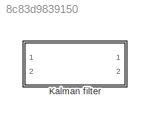
MODEL slx_8c83d9839150
KIND model
CONFIG AbsTol = auto
CONFIG EnableMultiTasking = off
CONFIG FixedStep = auto
CONFIG MaxStep = auto
CONFIG MinStep = auto
CONFIG RelTol = 1e-3
CONFIG SampleTimeConstraint = Unconstrained
CONFIG Solver = VariableStepAuto
CONFIG SolverName = VariableStepAuto
CONFIG StartTime = 0.0
CONFIG StopTime = 10.0
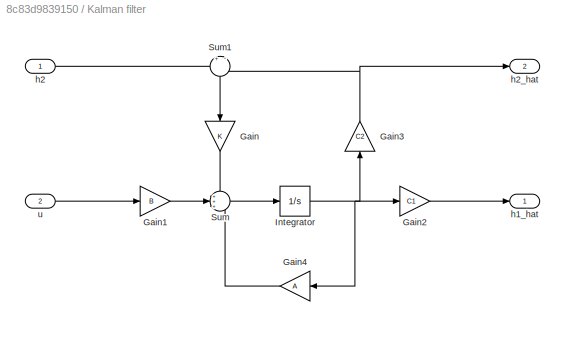
BLOCK [SubSystem] Kalman filter
  Ports = [2, 2]
  RequestExecContextInheritance = off
BLOCK [Gain] Kalman filter/Gain
  Gain = K
  OutDataTypeStr = Inherit: Inherit via internal rule
  ParamDataTypeStr = Inherit: Inherit via internal rule
  SaturateOnIntegerOverflow = off
BLOCK [Gain] Kalman filter/Gain1
  Gain = B
  OutDataTypeStr = Inherit: Inherit via internal rule
  ParamDataTypeStr = Inherit: Inherit via internal rule
  SaturateOnIntegerOverflow = off
BLOCK [Gain] Kalman filter/Gain2
  Gain = C1
  OutDataTypeStr = Inherit: Inherit via internal rule
  ParamDataTypeStr = Inherit: Inherit via internal rule
  SaturateOnIntegerOverflow = off
BLOCK [Gain] Kalman filter/Gain3
  Gain = C2
  OutDataTypeStr = Inherit: Inherit via internal rule
  ParamDataTypeStr = Inherit: Inherit via internal rule
  SaturateOnIntegerOverflow = off
BLOCK [Gain] Kalman filter/Gain4
  Gain = A
  OutDataTypeStr = Inherit: Inherit via internal rule
  ParamDataTypeStr = Inherit: Inherit via internal rule
  SaturateOnIntegerOverflow = off
BLOCK [Integrator] Kalman filter/Integrator
  Ports = [1, 1]
BLOCK [Sum] Kalman filter/Sum
  IconShape = round
  InputSameDT = off
  Inputs = +++
  OutDataTypeStr = Inherit: Inherit via internal rule
  Ports = [3, 1]
  SaturateOnIntegerOverflow = off
BLOCK [Sum] Kalman filter/Sum1
  IconShape = round
  InputSameDT = off
  Inputs = +|-
  OutDataTypeStr = Inherit: Inherit via internal rule
  Ports = [2, 1]
  SaturateOnIntegerOverflow = off
BLOCK [Outport] Kalman filter/h1_hat
  IconDisplay = Port number
BLOCK [Inport] Kalman filter/h2
  IconDisplay = Port number
BLOCK [Outport] Kalman filter/h2_hat
  IconDisplay = Port number
  Port = 2
BLOCK [Inport] Kalman filter/u
  IconDisplay = Port number
  Port = 2
LINE Kalman filter/Gain1:1 -> Kalman filter/Sum:2
LINE Kalman filter/Gain2:1 -> Kalman filter/h1_hat:1
NET Kalman filter/Gain3:1 -> Kalman filter/Sum1:2, Kalman filter/h2_hat:1
LINE Kalman filter/Gain4:1 -> Kalman filter/Sum:3
LINE Kalman filter/Gain:1 -> Kalman filter/Sum:1
NET Kalman filter/Integrator:1 -> Kalman filter/Gain2:1, Kalman filter/Gain3:1, Kalman filter/Gain4:1
LINE Kalman filter/Sum1:1 -> Kalman filter/Gain:1
LINE Kalman filter/Sum:1 -> Kalman filter/Integrator:1
LINE Kalman filter/h2:1 -> Kalman filter/Sum1:1
LINE Kalman filter/u:1 -> Kalman filter/Gain1:1
note: NET lines group one-source signal fan-out (src -> all destinations, sorted); 1:1 wires keep LINE
